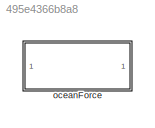
MODEL slx_495e4366b8a8
KIND library
CONFIG AbsTol = auto
CONFIG EnableMultiTasking = off
CONFIG FixedStep = auto
CONFIG MaxStep = auto
CONFIG MinStep = auto
CONFIG RelTol = 1e-3
CONFIG SampleTimeConstraint = Unconstrained
CONFIG SolverName = VariableStepAuto
CONFIG StartTime = 0.0
CONFIG StopTime = 10.0
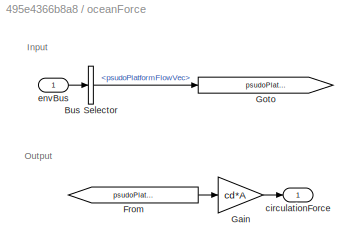
BLOCK [SubSystem] oceanForce
  Ports = [1, 1]
  RequestExecContextInheritance = off
BLOCK [BusSelector] oceanForce/Bus Selector
  OutputSignals = psudoPlatformFlowVec
  Ports = [1, 1]
BLOCK [From] oceanForce/From
  GotoTag = psudoPlatformFlowVec
BLOCK [Gain] oceanForce/Gain
  Gain = cd*A
BLOCK [Goto] oceanForce/Goto
  GotoTag = psudoPlatformFlowVec
BLOCK [Outport] oceanForce/circulationForce
  VectorParamsAs1DForOutWhenUnconnected = off
BLOCK [Inport] oceanForce/envBus
  OutDataTypeStr = Bus: envBus
ANNOTATION oceanForce: Input
ANNOTATION oceanForce: Output
LINE oceanForce/Bus Selector:1 -> oceanForce/Goto:1
LINE oceanForce/From:1 -> oceanForce/Gain:1
LINE oceanForce/Gain:1 -> oceanForce/circulationForce:1
LINE oceanForce/envBus:1 -> oceanForce/Bus Selector:1
